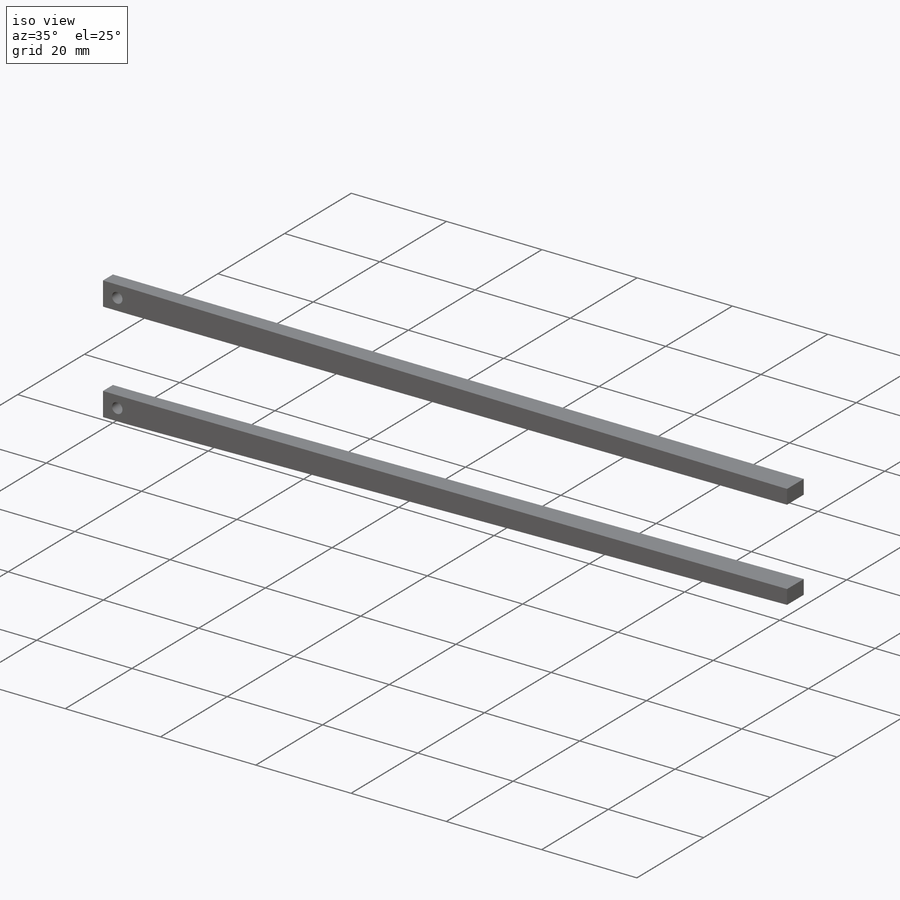
[diagram: iso view]
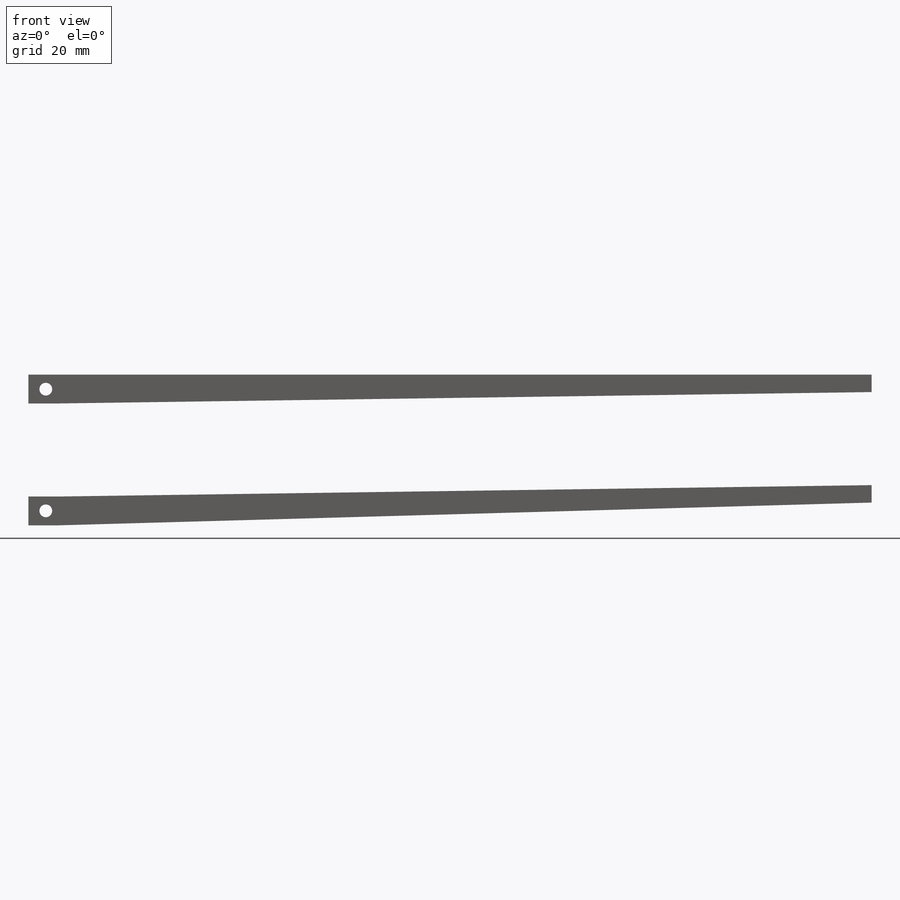
[diagram: front view]
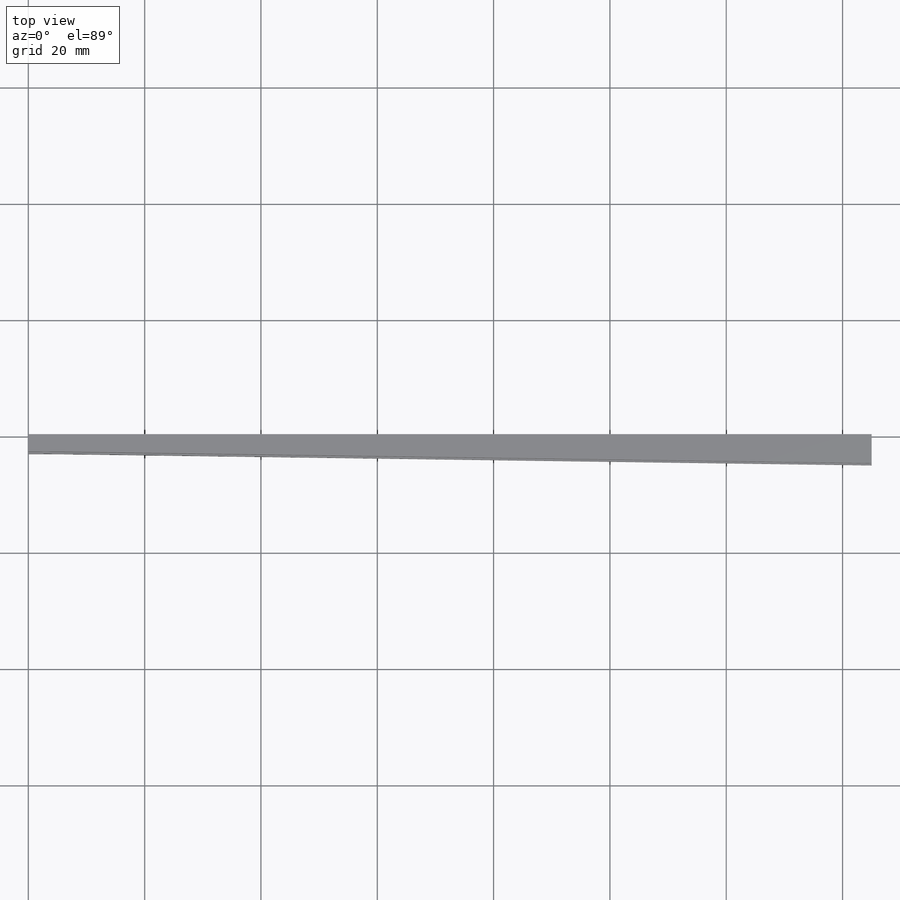
[diagram: top view]
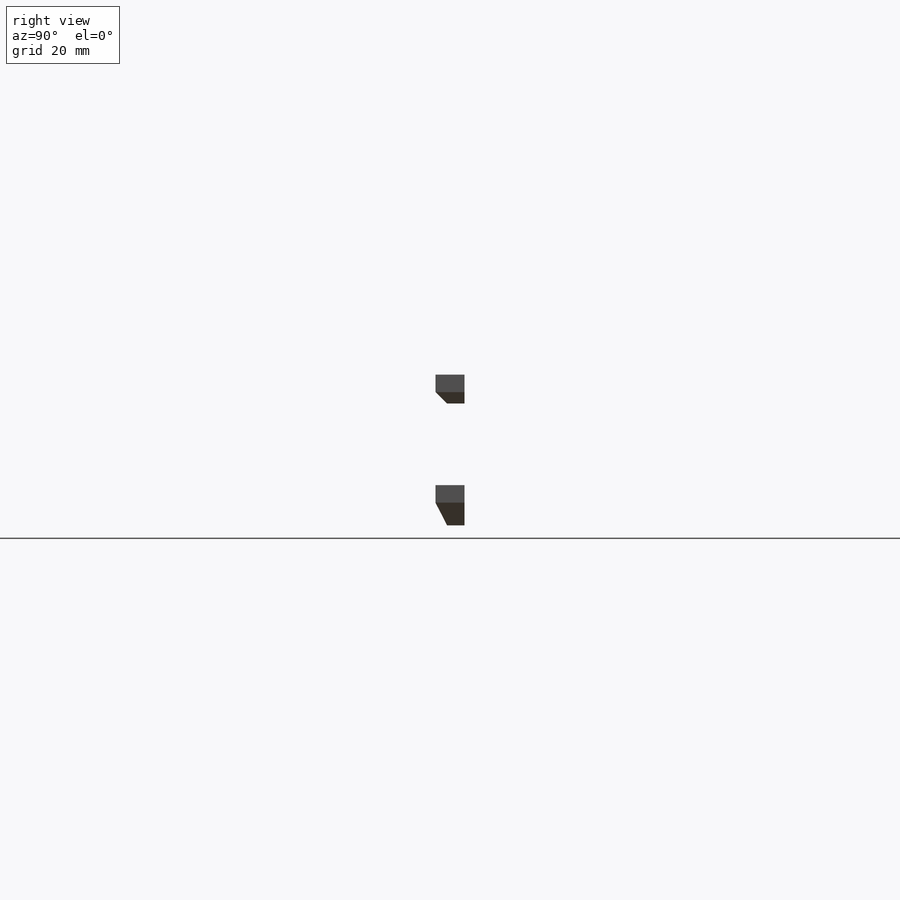
[diagram: right view]
SOLIDWORKS PART (.sldprt)
format: sldprt  version: not decoded by parser v0  size: 228,352 bytes
history: native  units: mm
features: sketch x5, plane x4, material x1, extrude x1, hole x1 (+10 scaffold rows collapsed)
feature tree (22):
  scaffold x10  (default folders/planes/origin — collapsed)
  material  "Material <nicht festgelegt>"
  plane  "Ebene vorne"
  plane  "Ebene oben"
  plane  "Ebene rechts"
  sketch  "Skizze1"  dims[D1=4.96mm D2=4.96mm D3=5.0mm D4=5.0mm D5=16.0mm]
  extrude  "Aufsatz-Linear austragen1"  Depth=3mm
  hole  "Durchgangsloch für M21"  Diameter=2.2mm Depth=3mm
  sketch  "Skizze3"  dims[D1=3.0mm D2=2.5mm D3=2.5mm D4=3.0mm]
  sketch  "Skizze2"  dims[hole-wizard template sketch: 46 standard entries collapsed; hole parameters kept: c15.Bohrerdurchmesser=2.2mm c15.Bohrungstiefe=3.0mm c15.D3=~14.816244mm c15.Spitzenwinkel=118.0deg]
  plane  "Ebene1"  Offset=140mm
  sketch  "Skizze6"  dims[c1.D1=5.0mm c1.D2=3.0mm c1.D3=5.0mm c1.D4=3.0mm c1.D5=16.0mm c2.D3=16.0mm c2.D4=3.0mm]
  sketch  "Skizze7"  dims[D1=3.0mm D2=5.0mm D3=16.0mm D4=16.0mm]
decode coverage: 7 of 7 modeling features carry decoded parameters
note: ~ marks probable driven/reference dimensions
note: suppression state not decoded; provenance and decode notes live in map.json
